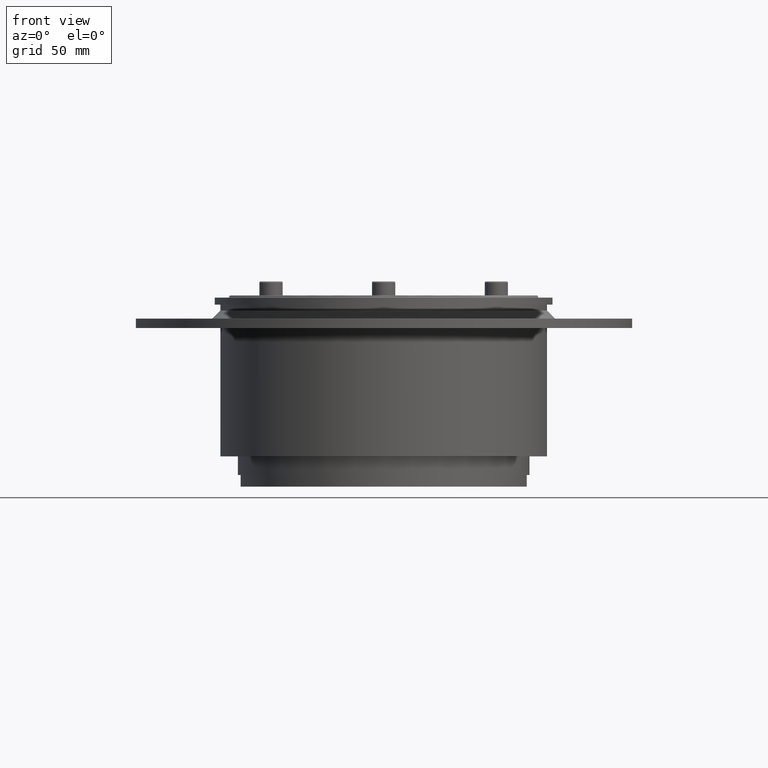
[diagram: clean part render]
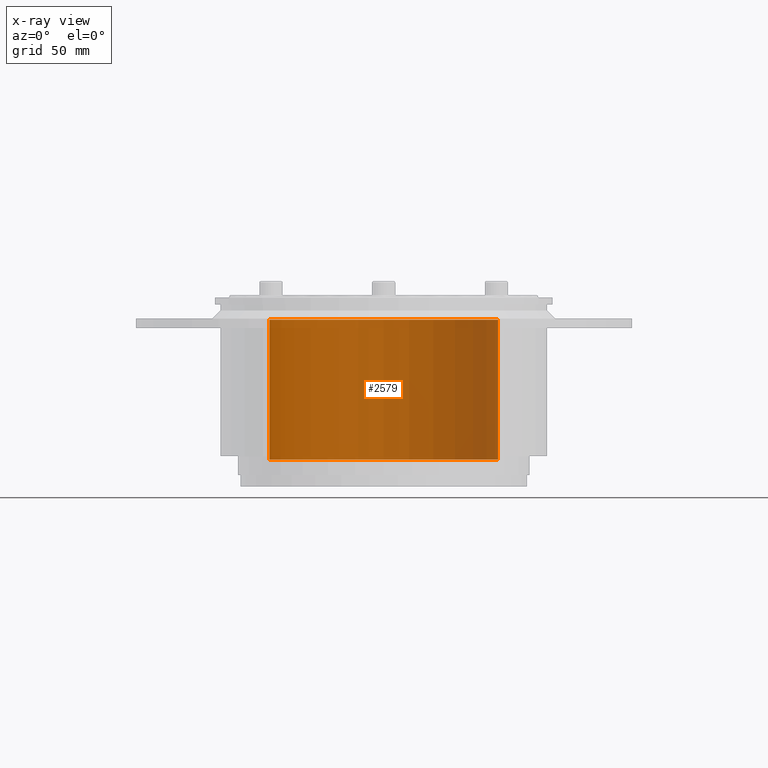
[diagram: x-ray — body ghosted, one internal face saturated and labeled with its STEP entity id]
A machine part, front view, then the same camera in x-ray: the body is ghosted and one INTERNAL B-rep face — a face not visible from any outside direction — is saturated and labeled: STEP entity #2579.
In plain terms, the highlighted cylindrical surface (partial cylindrical patch) has radius 49 mm, axis along (-0, -0, 1).
Its self-contained STEP definition (entity closure, byte-faithful):
#2513=CARTESIAN_POINT('',(-30.000000000000004,-4.879416E-015,49.0));
#2514=VERTEX_POINT('',#2513);
#2521=CARTESIAN_POINT('',(-30.0,1.088019E-014,-49.0));
#2522=VERTEX_POINT('',#2521);
#2523=CARTESIAN_POINT('',(-30.000000000000004,0.0,0.0));
#2524=DIRECTION('',(1.0,0.0,0.0));
#2525=DIRECTION('',(0.0,0.0,-1.0));
#2526=AXIS2_PLACEMENT_3D('',#2523,#2524,#2525);
#2527=CIRCLE('',#2526,49.0);
#2528=EDGE_CURVE('',#2522,#2514,#2527,.T.);
#2548=CARTESIAN_POINT('',(0.0,0.0,0.0));
#2549=DIRECTION('',(1.0,0.0,0.0));
#2550=DIRECTION('',(0.0,0.0,-1.0));
#2551=AXIS2_PLACEMENT_3D('',#2548,#2549,#2550);
#2552=CYLINDRICAL_SURFACE('',#2551,49.0);
#2553=CARTESIAN_POINT('',(30.0,-4.879416E-015,49.0));
#2554=VERTEX_POINT('',#2553);
#2555=CARTESIAN_POINT('',(-30.0,-4.879416E-015,49.0));
#2556=DIRECTION('',(1.0,0.0,0.0));
#2557=VECTOR('',#2556,60.0);
#2558=LINE('',#2555,#2557);
#2559=EDGE_CURVE('',#2514,#2554,#2558,.T.);
#2560=ORIENTED_EDGE('',*,*,#2559,.T.);
#2561=CARTESIAN_POINT('',(30.0,1.088019E-014,-49.0));
#2562=VERTEX_POINT('',#2561);
#2563=CARTESIAN_POINT('',(30.0,0.0,0.0));
#2564=DIRECTION('',(1.0,0.0,0.0));
#2565=DIRECTION('',(0.0,0.0,-1.0));
#2566=AXIS2_PLACEMENT_3D('',#2563,#2564,#2565);
#2567=CIRCLE('',#2566,49.0);
#2568=EDGE_CURVE('',#2562,#2554,#2567,.T.);
#2569=ORIENTED_EDGE('',*,*,#2568,.F.);
#2570=CARTESIAN_POINT('',(-30.0,1.088019E-014,-49.0));
#2571=DIRECTION('',(1.0,0.0,0.0));
#2572=VECTOR('',#2571,60.0);
#2573=LINE('',#2570,#2572);
#2574=EDGE_CURVE('',#2522,#2562,#2573,.T.);
#2575=ORIENTED_EDGE('',*,*,#2574,.F.);
#2576=ORIENTED_EDGE('',*,*,#2528,.T.);
#2577=EDGE_LOOP('',(#2560,#2569,#2575,#2576));
#2578=FACE_OUTER_BOUND('',#2577,.T.);
#2579=ADVANCED_FACE('',(#2578),#2552,.T.);